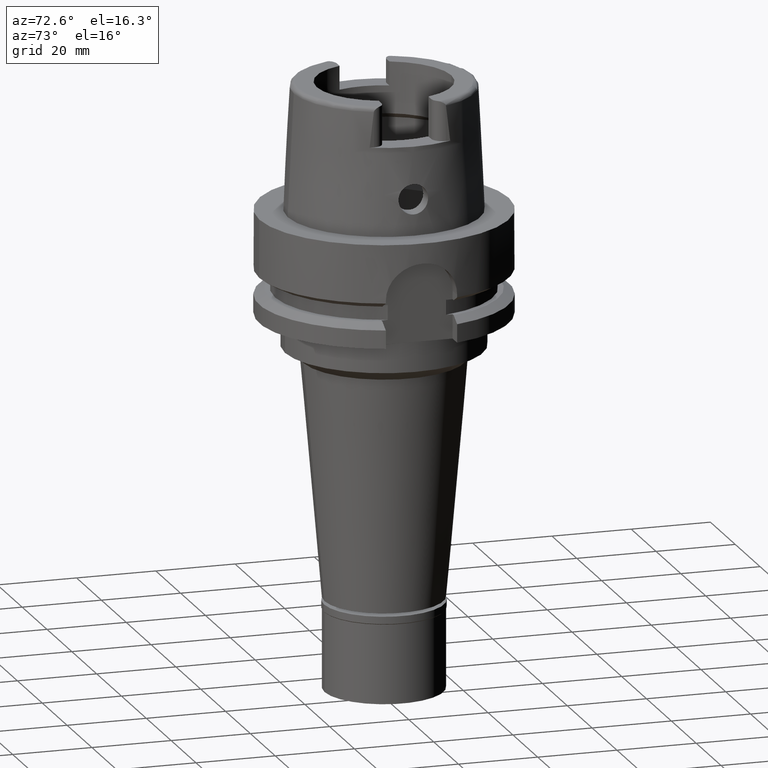
[diagram: clean part render]
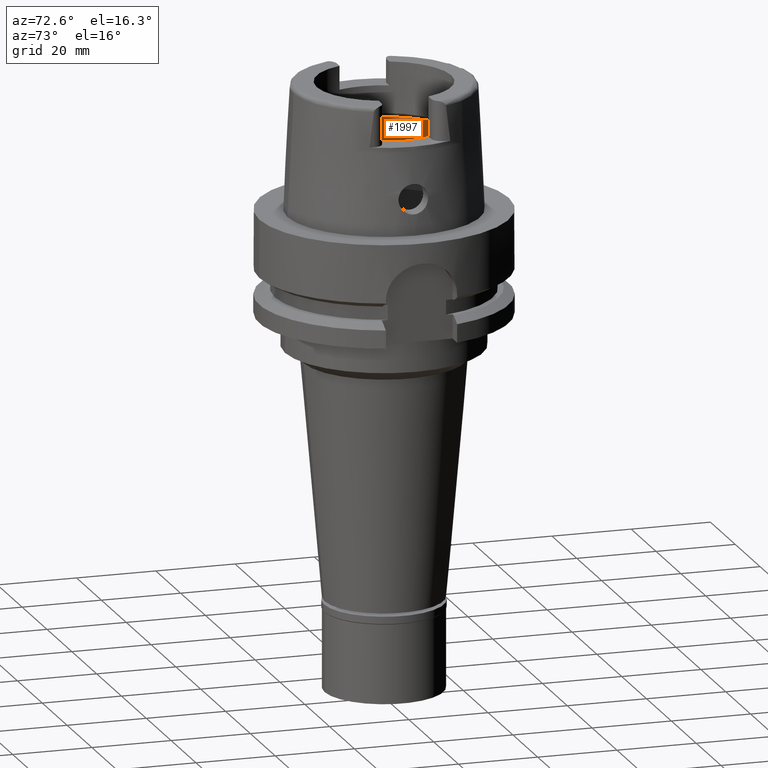
[diagram: same view with one face highlighted and labeled with its STEP entity id]
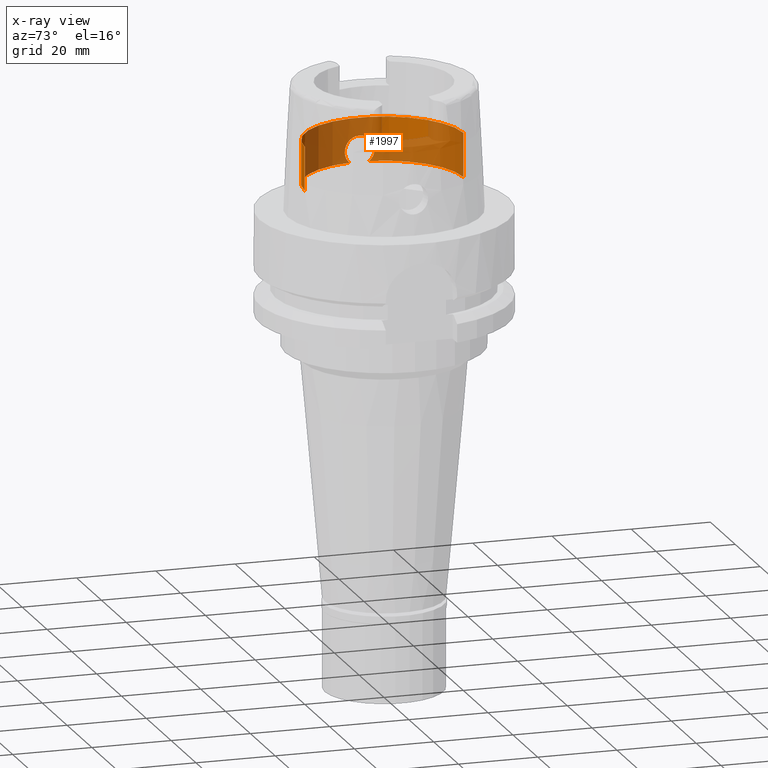
[diagram: x-ray of the same camera — body ghosted, the highlighted face saturated]
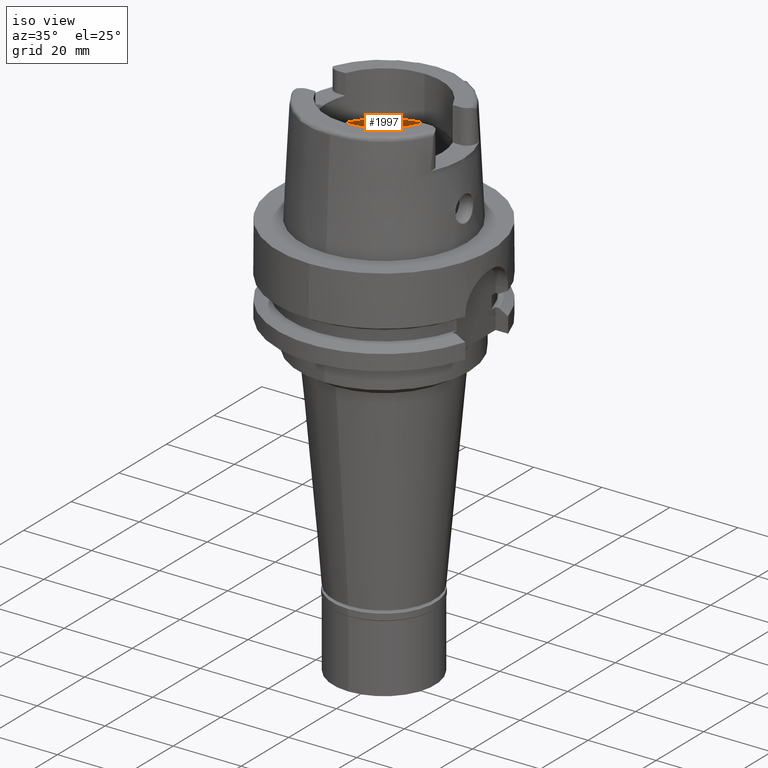
[diagram: same view with one face highlighted and labeled with its STEP entity id]
A machine part, auxiliary view. The second image highlights one B-rep face of the part: STEP entity #1997.
The next image is the same camera in x-ray: the body ghosted, the highlighted face saturated — about 82% of this face is hidden behind the body in this view.
A second angle (iso view) of the same face is appended — the face is thin or edge-on in the first view.
In plain terms, the highlighted cylindrical surface (partial cylindrical patch) has radius 20 mm, axis along (0, 0, 1).
Its self-contained STEP definition (entity closure, byte-faithful):
#9 = CARTESIAN_POINT ( 'NONE',  ( -19.81720445774989869, 2.707669389860194009, 6.387751814826988728 ) ) ;
#22 = CARTESIAN_POINT ( 'NONE',  ( -19.97344895848861057, -1.030308463844367362, 12.60582535313855246 ) ) ;
#46 = CARTESIAN_POINT ( 'NONE',  ( -19.86957832553476067, -2.285812741459744668, 11.97888197600888205 ) ) ;
#72 = CARTESIAN_POINT ( 'NONE',  ( -19.76218521802603689, -3.070489835126995359, 11.16078486495133149 ) ) ;
#76 = DIRECTION ( 'NONE',  ( 0.0000000000000000000, 8.659189811027998955E-14, 1.000000000000000000 ) ) ;
#83 = CARTESIAN_POINT ( 'NONE',  ( -20.00000000000000000, 0.0000000000000000000, 12.75000000000000000 ) ) ;
#95 = EDGE_CURVE ( 'NONE', #5078, #1844, #2474, .T. ) ;
#99 = CARTESIAN_POINT ( 'NONE',  ( -19.89095823224374726, -2.085713644855771154, 12.11648374669791117 ) ) ;
#111 = CARTESIAN_POINT ( 'NONE',  ( -19.68444656050969499, 3.538984966192822768, 10.24060327695447548 ) ) ;
#136 = CARTESIAN_POINT ( 'NONE',  ( -19.99999999999999289, 0.3697423141648149003, 12.74999999999999645 ) ) ;
#266 = CARTESIAN_POINT ( 'NONE',  ( -19.74050214421545846, -3.211456253445300835, 7.063751186994047693 ) ) ;
#287 = VERTEX_POINT ( 'NONE', #4414 ) ;
#344 = CARTESIAN_POINT ( 'NONE',  ( -19.76800539112029753, 3.041645556141475470, 6.804563529674936717 ) ) ;
#439 = CARTESIAN_POINT ( 'NONE',  ( -19.97753528254228783, -0.9493806287764846585, 12.62838817077891562 ) ) ;
#464 = CARTESIAN_POINT ( 'NONE',  ( -19.88866628133941461, -2.107483092658627655, 12.10180388901810389 ) ) ;
#474 = CARTESIAN_POINT ( 'NONE',  ( -19.84200635275697167, 2.502329483844525360, 11.79461748040401226 ) ) ;
#487 = CARTESIAN_POINT ( 'NONE',  ( -19.96014122202267416, -1.270892208830091796, 12.53204527630131082 ) ) ;
#529 = CARTESIAN_POINT ( 'NONE',  ( -19.74126825012605124, 3.206732381201345738, 7.055937705183436215 ) ) ;
#560 = CARTESIAN_POINT ( 'NONE',  ( -19.68383712217735848, 3.542833235717792295, 7.767602352657466014 ) ) ;
#577 = CARTESIAN_POINT ( 'NONE',  ( -19.66196025446226514, -3.661720004308447685, 8.190782541207234146 ) ) ;
#589 = CARTESIAN_POINT ( 'NONE',  ( -19.74408196507923918, 3.189507769359114508, 7.027753467622879668 ) ) ;
#602 = AXIS2_PLACEMENT_3D ( 'NONE', #1602, #2504, #4558 ) ;
#606 = CARTESIAN_POINT ( 'NONE',  ( -19.84575864665999845, -2.479085262491000030, 6.186348233825000875 ) ) ;
#636 = CARTESIAN_POINT ( 'NONE',  ( -19.79421680759977775, -2.868664143197291683, 6.577312059059698512 ) ) ;
#665 = EDGE_CURVE ( 'NONE', #2360, #2983, #3389, .T. ) ;
#700 = CIRCLE ( 'NONE', #602, 20.00000000000001421 ) ;
#712 = CARTESIAN_POINT ( 'NONE',  ( 0.0000000000000000000, 0.0000000000000000000, 17.26397459622000241 ) ) ;
#825 = CARTESIAN_POINT ( 'NONE',  ( -20.00000000000000000, 0.0000000000000000000, 12.75000000000000000 ) ) ;
#868 = CARTESIAN_POINT ( 'NONE',  ( -19.94877684821743102, -1.438056507936429140, 12.46848161165319269 ) ) ;
#879 = LINE ( 'NONE', #1662, #4857 ) ;
#903 = CARTESIAN_POINT ( 'NONE',  ( -19.68809407286782687, 3.518534857476617539, 10.29713417938171816 ) ) ;
#918 = CARTESIAN_POINT ( 'NONE',  ( -19.78483223074082176, -2.927863297566759559, 11.34355850194214455 ) ) ;
#950 = DIRECTION ( 'NONE',  ( 0.0000000000000000000, 0.0000000000000000000, -1.000000000000000000 ) ) ;
#959 = CARTESIAN_POINT ( 'NONE',  ( -19.73467468392387403, 3.248550492925644129, 10.87574282395697800 ) ) ;
#988 = CARTESIAN_POINT ( 'NONE',  ( -19.74170816454120825, 3.204028445430161298, 7.051484557759171601 ) ) ;
#1007 = CARTESIAN_POINT ( 'NONE',  ( -19.68325728292257537, -3.546810190312708944, 7.767787057415221241 ) ) ;
#1010 = VERTEX_POINT ( 'NONE', #3200 ) ;
#1016 = CARTESIAN_POINT ( 'NONE',  ( -19.68662323565642680, 3.526781987423883713, 10.27454048024404365 ) ) ;
#1079 = AXIS2_PLACEMENT_3D ( 'NONE', #3719, #2912, #4195 ) ;
#1092 = CARTESIAN_POINT ( 'NONE',  ( 0.0000000000000000000, -20.00000000000000000, 6.186348233825000875 ) ) ;
#1130 = CIRCLE ( 'NONE', #4222, 20.00000000000000000 ) ;
#1222 = ORIENTED_EDGE ( 'NONE', *, *, #665, .F. ) ;
#1260 = CYLINDRICAL_SURFACE ( 'NONE', #1079, 20.00000000000000000 ) ;
#1288 = CARTESIAN_POINT ( 'NONE',  ( -19.75172575992263191, 3.142941397880903764, 6.954144240938756383 ) ) ;
#1305 = CARTESIAN_POINT ( 'NONE',  ( -19.98969360632764491, -0.6474748908887623111, 12.69487643472645821 ) ) ;
#1314 = CARTESIAN_POINT ( 'NONE',  ( -19.67283839448943894, 3.602859119793589304, 7.958281513852726974 ) ) ;
#1345 = CARTESIAN_POINT ( 'NONE',  ( -19.77539082535206205, 2.989120374364001798, 11.26447533251521627 ) ) ;
#1358 = CARTESIAN_POINT ( 'NONE',  ( -19.90212436144429375, -1.976805776941308546, 12.18738054607644905 ) ) ;
#1387 = CARTESIAN_POINT ( 'NONE',  ( -20.00000000000000000, 0.0000000000000000000, 12.75000000000000000 ) ) ;
#1399 = CARTESIAN_POINT ( 'NONE',  ( -19.71196233118986640, 3.384523472155966939, 10.62587411975203899 ) ) ;
#1472 = CARTESIAN_POINT ( 'NONE',  ( -19.73723011582318776, -3.231571472317415594, 7.097437567035388639 ) ) ;
#1531 = CARTESIAN_POINT ( 'NONE',  ( -19.72028476277132469, -3.333921163981618641, 7.282456126997845836 ) ) ;
#1602 = CARTESIAN_POINT ( 'NONE',  ( 0.0000000000000000000, 0.0000000000000000000, 6.186348233825000875 ) ) ;
#1609 = CARTESIAN_POINT ( 'NONE',  ( -19.74566591985306374, 3.179869768371580641, 7.012262913506357442 ) ) ;
#1636 = B_SPLINE_CURVE_WITH_KNOTS ( 'NONE', 3,
 ( #1387, #3927, #4244, #1305, #1834, #3821, #439, #22, #2957, #4265, #4641, #487, #868, #1729, #2982, #4665, #1358, #2571, #99, #464, #3844, #46, #1754, #3412, #5108, #1809, #3006, #4689, #918, #72, #2595, #2619, #1782, #5132, #4288, #2193, #4312, #2224, #3471, #5159, #2385, #577, #4072, #4043, #3590, #1007, #1928, #4431, #1531, #2306, #3987, #1472, #3120, #2678, #266, #4490, #3201, #3955, #636, #4462, #606 ),
 .UNSPECIFIED., .F., .F.,
 ( 4, 2, 2, 1, 1, 2, 2, 2, 2, 1, 1, 2, 2, 2, 2, 2, 2, 2, 2, 2, 2, 2, 1, 2, 2, 2, 2, 1, 1, 1, 1, 2, 2, 2, 4 ),
 ( 0.0000000000000000000, 0.06250000000000326128, 0.09375000000000492661, 0.1093750000000056760, 0.1171875000000061756, 0.1210937500000063699, 0.1250000000000065781, 0.1875000000000077716, 0.2187500000000084932, 0.2343750000000088540, 0.2421875000000088263, 0.2460937500000086320, 0.2500000000000083822, 0.3125000000000093259, 0.3437500000000098810, 0.3593750000000099365, 0.3750000000000099365, 0.4375000000000101585, 0.5000000000000103251, 0.6250000000000108802, 0.6875000000000111022, 0.7187500000000112133, 0.7343750000000112133, 0.7421875000000113243, 0.7500000000000113243, 0.8125000000000123235, 0.8437500000000128786, 0.8593750000000132117, 0.8671875000000134337, 0.8710937500000134337, 0.8730468750000134337, 0.8740234375000135447, 0.8750000000000135447, 0.9375000000000068834, 1.000000000000000000 ),
 .UNSPECIFIED. ) ;
#1662 = CARTESIAN_POINT ( 'NONE',  ( 0.0000000000000000000, 20.00000000000000000, 6.186348233825000875 ) ) ;
#1685 = FACE_OUTER_BOUND ( 'NONE', #4330, .T. ) ;
#1716 = CARTESIAN_POINT ( 'NONE',  ( -19.79419687025121277, 2.868810292725731514, 6.577475811872025346 ) ) ;
#1729 = CARTESIAN_POINT ( 'NONE',  ( -19.92809312224205343, -1.694667508628886043, 12.34657583774762557 ) ) ;
#1754 = CARTESIAN_POINT ( 'NONE',  ( -19.85235760685445427, -2.434149035356369506, 11.85895019005813822 ) ) ;
#1765 = CARTESIAN_POINT ( 'NONE',  ( -19.74139748734406297, 3.205938604024512806, 7.054631361714750248 ) ) ;
#1782 = CARTESIAN_POINT ( 'NONE',  ( -19.70155861967972299, -3.443035270309890983, 10.49835027246716201 ) ) ;
#1791 = CARTESIAN_POINT ( 'NONE',  ( -19.67634538098775465, 3.583810067983433711, 7.895102619723856741 ) ) ;
#1809 = CARTESIAN_POINT ( 'NONE',  ( -19.80330139623251284, -2.804502925657105905, 11.48988442446414560 ) ) ;
#1818 = EDGE_CURVE ( 'NONE', #2337, #287, #879, .T. ) ;
#1819 = CARTESIAN_POINT ( 'NONE',  ( -19.68897794674143142, 3.513578055625530716, 10.31048304100225899 ) ) ;
#1834 = CARTESIAN_POINT ( 'NONE',  ( -19.98647285830504217, -0.7405311668641919587, 12.67738816559527670 ) ) ;
#1844 = VERTEX_POINT ( 'NONE', #825 ) ;
#1850 = CARTESIAN_POINT ( 'NONE',  ( -19.65388667740312911, 3.709331503783063422, 9.582705322824097038 ) ) ;
#1928 = CARTESIAN_POINT ( 'NONE',  ( -19.70206451616015997, -3.440427232563138205, 7.505045728815482597 ) ) ;
#1997 = ADVANCED_FACE ( 'NONE', ( #1685 ), #1260, .F. ) ;
#2193 = CARTESIAN_POINT ( 'NONE',  ( -19.64540540965605686, -3.754657836431442242, 9.018279793151430468 ) ) ;
#2224 = CARTESIAN_POINT ( 'NONE',  ( -19.65056779414121735, -3.724541167213499815, 8.554017914410790624 ) ) ;
#2233 = CARTESIAN_POINT ( 'NONE',  ( -19.64954719286232177, 3.728741916298756731, 8.458463502151440494 ) ) ;
#2259 = CARTESIAN_POINT ( 'NONE',  ( -19.92158641814960163, 1.820138588210898911, 12.29994060967309544 ) ) ;
#2278 = ORIENTED_EDGE ( 'NONE', *, *, #4943, .T. ) ;
#2306 = CARTESIAN_POINT ( 'NONE',  ( -19.72618073619626955, -3.298772401853359515, 7.215286315074708412 ) ) ;
#2337 = VERTEX_POINT ( 'NONE', #3905 ) ;
#2360 = VERTEX_POINT ( 'NONE', #1092 ) ;
#2385 = CARTESIAN_POINT ( 'NONE',  ( -19.65926971838113602, -3.676378095658340950, 8.258084530350963348 ) ) ;
#2474 = B_SPLINE_CURVE_WITH_KNOTS ( 'NONE', 3,
 ( #2531, #9, #1716, #344, #5065, #1288, #2965, #1609, #589, #4322, #988, #1765, #2629, #529, #3419, #3044, #3483, #560, #1791, #1314, #4783, #2990, #3099, #2233, #4677, #2603, #1850, #5201, #4295, #3909, #4725, #111, #1016, #903, #1819, #5172, #1399, #959, #2579, #3072, #5092, #4387, #1345, #4753, #3015, #5143, #2660, #474, #4354, #4699, #3881, #2259, #3937, #2686, #136, #83 ),
 .UNSPECIFIED., .F., .F.,
 ( 4, 2, 2, 2, 1, 1, 1, 2, 2, 2, 2, 1, 2, 2, 2, 2, 2, 1, 1, 2, 2, 2, 2, 1, 1, 2, 2, 2, 2, 2, 2, 4 ),
 ( 0.0000000000000000000, 0.06250000000002056688, 0.09375000000003083644, 0.1093750000000361516, 0.1171875000000387329, 0.1210937500000399403, 0.1230468750000401762, 0.1240234375000400791, 0.1250000000000399680, 0.1875000000000393297, 0.2187500000000389966, 0.2343750000000386913, 0.2421875000000385247, 0.2500000000000383582, 0.3750000000000311418, 0.4375000000000278111, 0.4687500000000259237, 0.4843750000000246470, 0.4921875000000240918, 0.4960937500000238698, 0.5000000000000236478, 0.5625000000000175415, 0.5937500000000144329, 0.6093750000000126565, 0.6171875000000118794, 0.6210937500000116573, 0.6250000000000113243, 0.6875000000000091038, 0.7187500000000081046, 0.7500000000000072164, 0.8750000000000035527, 1.000000000000000000 ),
 .UNSPECIFIED. ) ;
#2504 = DIRECTION ( 'NONE',  ( 0.0000000000000000000, 0.0000000000000000000, -1.000000000000000000 ) ) ;
#2518 = CARTESIAN_POINT ( 'NONE',  ( 0.0000000000000000000, -20.00000000000000000, 17.26397459622000241 ) ) ;
#2531 = CARTESIAN_POINT ( 'NONE',  ( -19.84575864665999845, 2.479085262489999941, 6.186348233825000875 ) ) ;
#2556 = VECTOR ( 'NONE', #76, 1000.000000000000000 ) ;
#2571 = CARTESIAN_POINT ( 'NONE',  ( -19.89436774324659041, -2.053050869394019706, 12.13825988178101767 ) ) ;
#2573 = ORIENTED_EDGE ( 'NONE', *, *, #95, .F. ) ;
#2579 = CARTESIAN_POINT ( 'NONE',  ( -19.74290507621340751, 3.198127210954651911, 10.96088677889494534 ) ) ;
#2595 = CARTESIAN_POINT ( 'NONE',  ( -19.74555890587368623, -3.175025816566706904, 11.00441572346027108 ) ) ;
#2602 = AXIS2_PLACEMENT_3D ( 'NONE', #3179, #950, #2622 ) ;
#2603 = CARTESIAN_POINT ( 'NONE',  ( -19.64937710417359185, 3.733900116578555917, 9.394705776714792123 ) ) ;
#2619 = CARTESIAN_POINT ( 'NONE',  ( -19.71528887760795001, -3.361058589154634291, 10.67384482213547514 ) ) ;
#2622 = DIRECTION ( 'NONE',  ( 0.0000000000000000000, -1.000000000000000000, 0.0000000000000000000 ) ) ;
#2629 = CARTESIAN_POINT ( 'NONE',  ( -19.74119307751410801, 3.207196554847036918, 7.056705958899749831 ) ) ;
#2660 = CARTESIAN_POINT ( 'NONE',  ( -19.81550359737875411, 2.709934279293842785, 11.59902193755599065 ) ) ;
#2678 = CARTESIAN_POINT ( 'NONE',  ( -19.73995359268493033, -3.214834596166496361, 7.069365582780906543 ) ) ;
#2686 = CARTESIAN_POINT ( 'NONE',  ( -19.98901729504505553, 0.7490699930472449752, 12.69414195094704922 ) ) ;
#2688 = CIRCLE ( 'NONE', #2602, 20.00000000000000000 ) ;
#2786 = EDGE_CURVE ( 'NONE', #1844, #1010, #1636, .T. ) ;
#2912 = DIRECTION ( 'NONE',  ( 0.0000000000000000000, 0.0000000000000000000, 1.000000000000000000 ) ) ;
#2957 = CARTESIAN_POINT ( 'NONE',  ( -19.97160709321317995, -1.064931004213691912, 12.59563164448770678 ) ) ;
#2965 = CARTESIAN_POINT ( 'NONE',  ( -19.74909382634187693, 3.158992273729916977, 6.979121554912873115 ) ) ;
#2982 = CARTESIAN_POINT ( 'NONE',  ( -19.92059235270568607, -1.781160787725601047, 12.30151595725973479 ) ) ;
#2983 = VERTEX_POINT ( 'NONE', #2518 ) ;
#2990 = CARTESIAN_POINT ( 'NONE',  ( -19.66767025526566925, 3.630792165607066746, 8.061755088941817249 ) ) ;
#3006 = CARTESIAN_POINT ( 'NONE',  ( -19.79874133142478598, -2.835852415743802091, 11.45411943134832278 ) ) ;
#3015 = CARTESIAN_POINT ( 'NONE',  ( -19.77935117485643701, 2.962758983637435062, 11.29884763529592995 ) ) ;
#3044 = CARTESIAN_POINT ( 'NONE',  ( -19.70827426848425645, 3.405308863738644831, 7.418192849895611118 ) ) ;
#3072 = CARTESIAN_POINT ( 'NONE',  ( -19.75624007671500948, 3.113842777759054048, 11.09024682984358812 ) ) ;
#3099 = CARTESIAN_POINT ( 'NONE',  ( -19.66678415754253351, 3.635576939601147473, 8.080432253773551565 ) ) ;
#3120 = CARTESIAN_POINT ( 'NONE',  ( -19.73913263127211337, -3.219887102564462200, 7.077787217632683259 ) ) ;
#3179 = CARTESIAN_POINT ( 'NONE',  ( 0.0000000000000000000, 0.0000000000000000000, 6.186348233825000875 ) ) ;
#3200 = CARTESIAN_POINT ( 'NONE',  ( -19.84575864665999845, -2.479085262491000030, 6.186348233825000875 ) ) ;
#3201 = CARTESIAN_POINT ( 'NONE',  ( -19.74741036865644261, -3.168852955864734700, 6.993359919105000877 ) ) ;
#3389 = LINE ( 'NONE', #5085, #2556 ) ;
#3412 = CARTESIAN_POINT ( 'NONE',  ( -19.82584683513356794, -2.641735682896810822, 11.66322680419818347 ) ) ;
#3419 = CARTESIAN_POINT ( 'NONE',  ( -19.72335945079566244, 3.317162608579930616, 7.238452579922435959 ) ) ;
#3471 = CARTESIAN_POINT ( 'NONE',  ( -19.65273578416913836, -3.712391056149741075, 8.462270669203501683 ) ) ;
#3483 = CARTESIAN_POINT ( 'NONE',  ( -19.68946864056109547, 3.511676023678800718, 7.681073510723951614 ) ) ;
#3550 = CARTESIAN_POINT ( 'NONE',  ( -19.84575864665999845, 2.479085262489999941, 6.186348233825000875 ) ) ;
#3590 = CARTESIAN_POINT ( 'NONE',  ( -19.67326667967735432, -3.600530079576868214, 7.938450453574767529 ) ) ;
#3719 = CARTESIAN_POINT ( 'NONE',  ( 0.0000000000000000000, 0.0000000000000000000, 0.0000000000000000000 ) ) ;
#3821 = CARTESIAN_POINT ( 'NONE',  ( -19.98067551186434798, -0.8798145831813053430, 12.64564038703914051 ) ) ;
#3844 = CARTESIAN_POINT ( 'NONE',  ( -19.88739388942810749, -2.119456943077380195, 12.09362951654593665 ) ) ;
#3881 = CARTESIAN_POINT ( 'NONE',  ( -19.87767204946074884, 2.205244950743339594, 12.03449262463265867 ) ) ;
#3905 = CARTESIAN_POINT ( 'NONE',  ( 0.0000000000000000000, 20.00000000000000000, 6.186348233825000875 ) ) ;
#3909 = CARTESIAN_POINT ( 'NONE',  ( -19.67575381829951553, 3.587662547253283929, 10.09245910748127173 ) ) ;
#3927 = CARTESIAN_POINT ( 'NONE',  ( -19.99999999999999645, -0.1830383938489349716, 12.75000000000000178 ) ) ;
#3937 = CARTESIAN_POINT ( 'NONE',  ( -19.94912519150912189, 1.477054850133008301, 12.46786671859361384 ) ) ;
#3955 = CARTESIAN_POINT ( 'NONE',  ( -19.75931477925610125, -3.098994735553814550, 6.879886216578660729 ) ) ;
#3987 = CARTESIAN_POINT ( 'NONE',  ( -19.73347732964914414, -3.254522913912112791, 7.136734402390024101 ) ) ;
#4043 = CARTESIAN_POINT ( 'NONE',  ( -19.66489324730380517, -3.645798670360734572, 8.121881131462764358 ) ) ;
#4072 = CARTESIAN_POINT ( 'NONE',  ( -19.66383280026155234, -3.651545406526277127, 8.146043075064945072 ) ) ;
#4145 = EDGE_CURVE ( 'NONE', #5078, #2337, #700, .T. ) ;
#4195 = DIRECTION ( 'NONE',  ( 0.0000000000000000000, 1.000000000000000000, 0.0000000000000000000 ) ) ;
#4222 = AXIS2_PLACEMENT_3D ( 'NONE', #712, #5341, #4448 ) ;
#4244 = CARTESIAN_POINT ( 'NONE',  ( -19.99742340158191212, -0.3685812248625958132, 12.73657467335953974 ) ) ;
#4265 = CARTESIAN_POINT ( 'NONE',  ( -19.97035905335441441, -1.087997955923236226, 12.58871918858021743 ) ) ;
#4288 = CARTESIAN_POINT ( 'NONE',  ( -19.65132268833655615, -3.723721543609340046, 9.580995992855765309 ) ) ;
#4295 = CARTESIAN_POINT ( 'NONE',  ( -19.66858531257130593, 3.627721550410554219, 9.954617290131304586 ) ) ;
#4312 = CARTESIAN_POINT ( 'NONE',  ( -19.64595634594228457, -3.750786572429421373, 8.831098265782872048 ) ) ;
#4322 = CARTESIAN_POINT ( 'NONE',  ( -19.74246151516663517, 3.199408050547279725, 7.043898116730644254 ) ) ;
#4330 = EDGE_LOOP ( 'NONE', ( #2573, #5128, #4412, #2278, #1222, #4682, #4886 ) ) ;
#4354 = CARTESIAN_POINT ( 'NONE',  ( -19.85086371383954074, 2.430647167755408677, 11.85718288763047212 ) ) ;
#4387 = CARTESIAN_POINT ( 'NONE',  ( -19.77165512657431279, 3.013859546493999453, 11.23169303460419499 ) ) ;
#4412 = ORIENTED_EDGE ( 'NONE', *, *, #1818, .T. ) ;
#4414 = CARTESIAN_POINT ( 'NONE',  ( 0.0000000000000000000, 20.00000000000000000, 17.26397459622000241 ) ) ;
#4431 = CARTESIAN_POINT ( 'NONE',  ( -19.70897048196764700, -3.400667112332964592, 7.416361049852553400 ) ) ;
#4448 = DIRECTION ( 'NONE',  ( 0.0000000000000000000, 1.000000000000000000, 0.0000000000000000000 ) ) ;
#4462 = CARTESIAN_POINT ( 'NONE',  ( -19.81721442534380273, -2.707589596507953722, 6.387681509565351412 ) ) ;
#4490 = CARTESIAN_POINT ( 'NONE',  ( -19.74095322089417692, -3.208675546789897748, 7.059148992012644896 ) ) ;
#4558 = DIRECTION ( 'NONE',  ( -0.9922879323327794543, 0.1239542631244973381, 0.0000000000000000000 ) ) ;
#4641 = CARTESIAN_POINT ( 'NONE',  ( -19.96963954379295814, -1.101051552707466907, 12.58473079820862317 ) ) ;
#4665 = CARTESIAN_POINT ( 'NONE',  ( -19.90843190708423904, -1.911493468082982483, 12.22663959304708925 ) ) ;
#4677 = CARTESIAN_POINT ( 'NONE',  ( -19.64342103609713064, 3.765030115751117012, 8.831895417918875779 ) ) ;
#4682 = ORIENTED_EDGE ( 'NONE', *, *, #5446, .T. ) ;
#4689 = CARTESIAN_POINT ( 'NONE',  ( -19.78956456066759984, -2.897168513964590186, 11.38142304282409967 ) ) ;
#4699 = CARTESIAN_POINT ( 'NONE',  ( -19.86862465458429483, 2.282735452584712554, 11.97668583511909546 ) ) ;
#4725 = CARTESIAN_POINT ( 'NONE',  ( -19.67957471652650980, 3.566283218813455669, 10.16110180650831118 ) ) ;
#4753 = CARTESIAN_POINT ( 'NONE',  ( -19.77790190395528924, 2.972430458429382583, 11.28633906361439720 ) ) ;
#4783 = CARTESIAN_POINT ( 'NONE',  ( -19.66968973413587563, 3.619880507635057754, 8.020499937006649205 ) ) ;
#4857 = VECTOR ( 'NONE', #5069, 1000.000000000000000 ) ;
#4886 = ORIENTED_EDGE ( 'NONE', *, *, #2786, .F. ) ;
#4943 = EDGE_CURVE ( 'NONE', #287, #2983, #1130, .T. ) ;
#5065 = CARTESIAN_POINT ( 'NONE',  ( -19.76066154842951761, 3.087763093128712999, 6.870999119233928809 ) ) ;
#5069 = DIRECTION ( 'NONE',  ( 0.0000000000000000000, -8.659189811027998955E-14, 1.000000000000000000 ) ) ;
#5078 = VERTEX_POINT ( 'NONE', #3550 ) ;
#5085 = CARTESIAN_POINT ( 'NONE',  ( 0.0000000000000000000, -20.00000000000000000, 6.186348233825000875 ) ) ;
#5092 = CARTESIAN_POINT ( 'NONE',  ( -19.76315492998264034, 3.069538830042016109, 11.15533419814446248 ) ) ;
#5108 = CARTESIAN_POINT ( 'NONE',  ( -19.81689662894319071, -2.708448166866218809, 11.59535218346810481 ) ) ;
#5128 = ORIENTED_EDGE ( 'NONE', *, *, #4145, .T. ) ;
#5132 = CARTESIAN_POINT ( 'NONE',  ( -19.66536099084248335, -3.646002399893930601, 9.957782932803164400 ) ) ;
#5143 = CARTESIAN_POINT ( 'NONE',  ( -19.79792753095254554, 2.838398913671805079, 11.45807860674709744 ) ) ;
#5159 = CARTESIAN_POINT ( 'NONE',  ( -19.65693403015339413, -3.689208397825934682, 8.325932908268425692 ) ) ;
#5172 = CARTESIAN_POINT ( 'NONE',  ( -19.69945919487998864, 3.454792445844840909, 10.46684249681210588 ) ) ;
#5201 = CARTESIAN_POINT ( 'NONE',  ( -19.66443736305350143, 3.650826603765281675, 9.861981167886467503 ) ) ;
#5341 = DIRECTION ( 'NONE',  ( 0.0000000000000000000, 0.0000000000000000000, 1.000000000000000000 ) ) ;
#5446 = EDGE_CURVE ( 'NONE', #2360, #1010, #2688, .T. ) ;